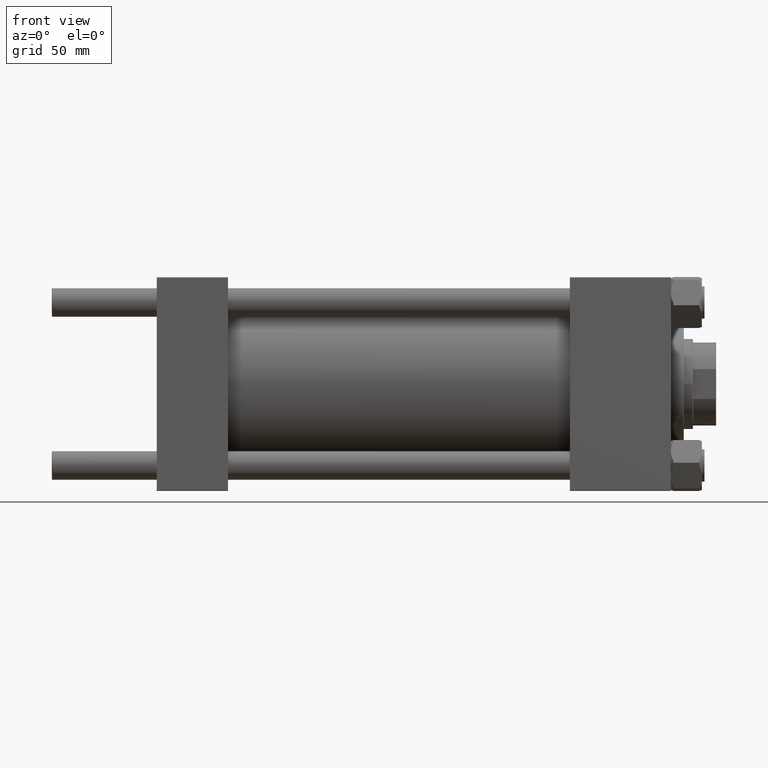
[diagram: clean part render]
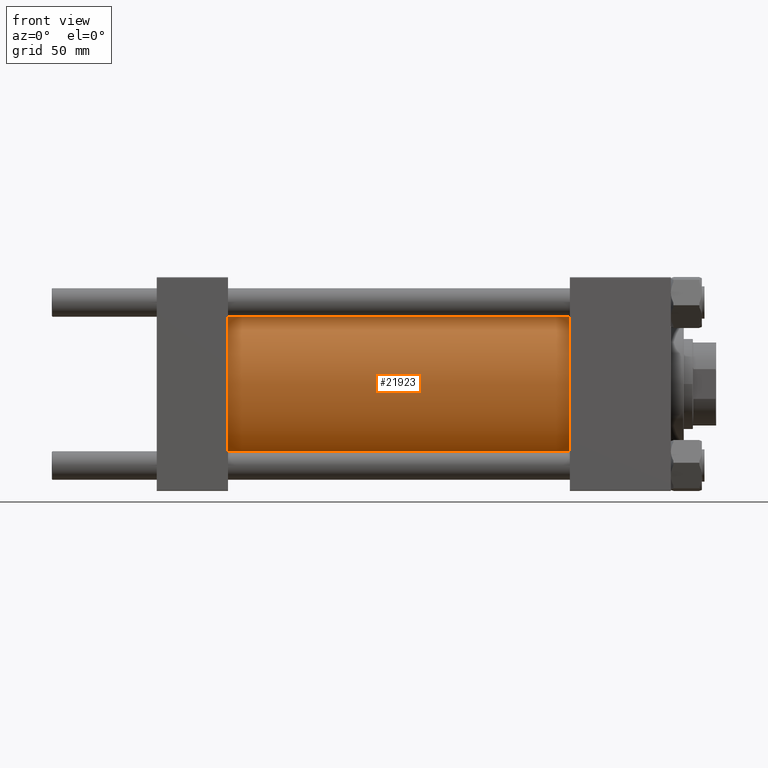
[diagram: same view with one face highlighted and labeled with its STEP entity id]
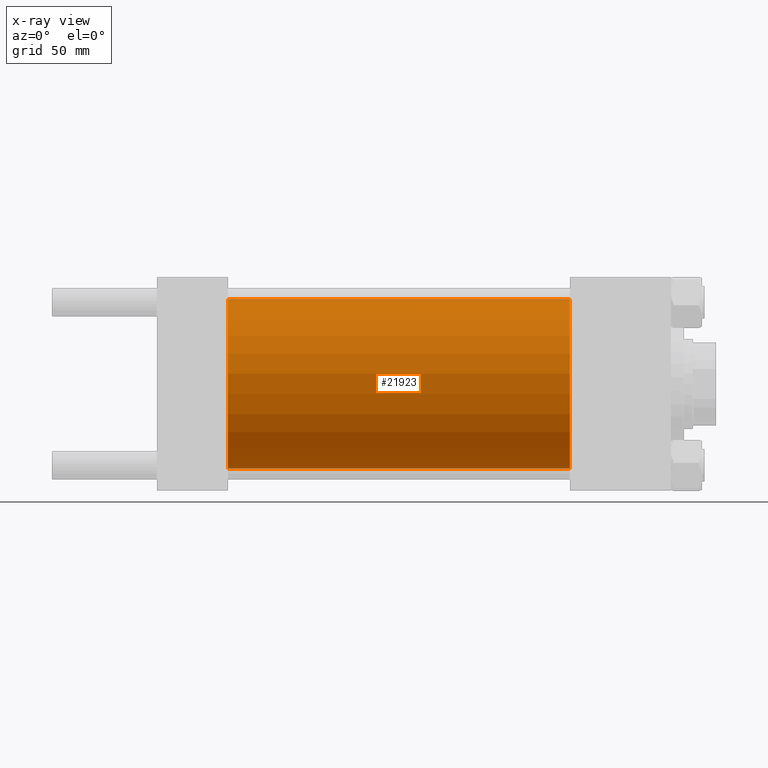
[diagram: x-ray of the same camera — body ghosted, the highlighted face saturated]
A machine part, front view. The second image highlights one B-rep face of the part: STEP entity #21923.
The next image is the same camera in x-ray: the body ghosted, the highlighted face saturated — about 2% of this face is hidden behind the body in this view.
In plain terms, the highlighted cylindrical surface (partial cylindrical patch) has radius 65.5 mm, axis along (-1, -0, -0).
Its self-contained STEP definition (entity closure, byte-faithful):
#1412 = DIRECTION ( 'NONE',  ( 1.000000000000000000, -0.000000000000000000, -0.000000000000000000 ) ) ;
#4344 = CYLINDRICAL_SURFACE ( 'NONE', #49668, 65.50000000000001421 ) ;
#5131 = DIRECTION ( 'NONE',  ( 0.000000000000000000, 0.000000000000000000, -1.000000000000000000 ) ) ;
#6250 = DIRECTION ( 'NONE',  ( -1.000000000000000000, -0.000000000000000000, -0.000000000000000000 ) ) ;
#7221 = ORIENTED_EDGE ( 'NONE', *, *, #12056, .F. ) ;
#7782 = DIRECTION ( 'NONE',  ( -1.000000000000000000, -0.000000000000000000, -0.000000000000000000 ) ) ;
#7887 = CIRCLE ( 'NONE', #42929, 65.50000000000001421 ) ;
#8181 = DIRECTION ( 'NONE',  ( 0.000000000000000000, 0.000000000000000000, 1.000000000000000000 ) ) ;
#9330 = CARTESIAN_POINT ( 'NONE',  ( 54.99999999999999289, 0.000000000000000000, 0.000000000000000000 ) ) ;
#10040 = VERTEX_POINT ( 'NONE', #45796 ) ;
#10067 = LINE ( 'NONE', #10576, #36438 ) ;
#10576 = CARTESIAN_POINT ( 'NONE',  ( 319.0000000000000000, 8.021436534415166404E-15, -65.50000000000001421 ) ) ;
#11304 = ORIENTED_EDGE ( 'NONE', *, *, #12540, .T. ) ;
#12056 = EDGE_CURVE ( 'NONE', #10040, #45383, #10067, .T. ) ;
#12540 = EDGE_CURVE ( 'NONE', #37341, #45383, #27480, .T. ) ;
#13653 = DIRECTION ( 'NONE',  ( 0.000000000000000000, 0.000000000000000000, 1.000000000000000000 ) ) ;
#14925 = EDGE_CURVE ( 'NONE', #26622, #10040, #7887, .T. ) ;
#16663 = CARTESIAN_POINT ( 'NONE',  ( 54.99999999999999289, 8.021436534415166404E-15, -65.50000000000001421 ) ) ;
#19622 = ORIENTED_EDGE ( 'NONE', *, *, #14925, .F. ) ;
#21923 = ADVANCED_FACE ( 'NONE', ( #39316 ), #4344, .T. ) ;
#23224 = CARTESIAN_POINT ( 'NONE',  ( 319.0000000000000000, 0.000000000000000000, 0.000000000000000000 ) ) ;
#23717 = DIRECTION ( 'NONE',  ( -1.000000000000000000, -0.000000000000000000, -0.000000000000000000 ) ) ;
#24201 = AXIS2_PLACEMENT_3D ( 'NONE', #9330, #1412, #13653 ) ;
#26622 = VERTEX_POINT ( 'NONE', #35531 ) ;
#27480 = CIRCLE ( 'NONE', #24201, 65.50000000000001421 ) ;
#29809 = ORIENTED_EDGE ( 'NONE', *, *, #50391, .T. ) ;
#30397 = CARTESIAN_POINT ( 'NONE',  ( 54.99999999999999289, 0.000000000000000000, 65.50000000000001421 ) ) ;
#33748 = EDGE_LOOP ( 'NONE', ( #7221, #19622, #29809, #11304 ) ) ;
#35531 = CARTESIAN_POINT ( 'NONE',  ( 319.0000000000000000, 0.000000000000000000, 65.50000000000001421 ) ) ;
#36438 = VECTOR ( 'NONE', #6250, 1000.000000000000000 ) ;
#37341 = VERTEX_POINT ( 'NONE', #30397 ) ;
#39156 = CARTESIAN_POINT ( 'NONE',  ( 319.0000000000000000, 0.000000000000000000, 65.50000000000001421 ) ) ;
#39316 = FACE_OUTER_BOUND ( 'NONE', #33748, .T. ) ;
#40093 = DIRECTION ( 'NONE',  ( 1.000000000000000000, 0.000000000000000000, 0.000000000000000000 ) ) ;
#42929 = AXIS2_PLACEMENT_3D ( 'NONE', #47981, #40093, #5131 ) ;
#44368 = VECTOR ( 'NONE', #7782, 1000.000000000000000 ) ;
#45383 = VERTEX_POINT ( 'NONE', #16663 ) ;
#45796 = CARTESIAN_POINT ( 'NONE',  ( 319.0000000000000000, 8.021436534415166404E-15, -65.50000000000001421 ) ) ;
#46800 = LINE ( 'NONE', #39156, #44368 ) ;
#47981 = CARTESIAN_POINT ( 'NONE',  ( 319.0000000000000000, 0.000000000000000000, 0.000000000000000000 ) ) ;
#49668 = AXIS2_PLACEMENT_3D ( 'NONE', #23224, #23717, #8181 ) ;
#50391 = EDGE_CURVE ( 'NONE', #26622, #37341, #46800, .T. ) ;